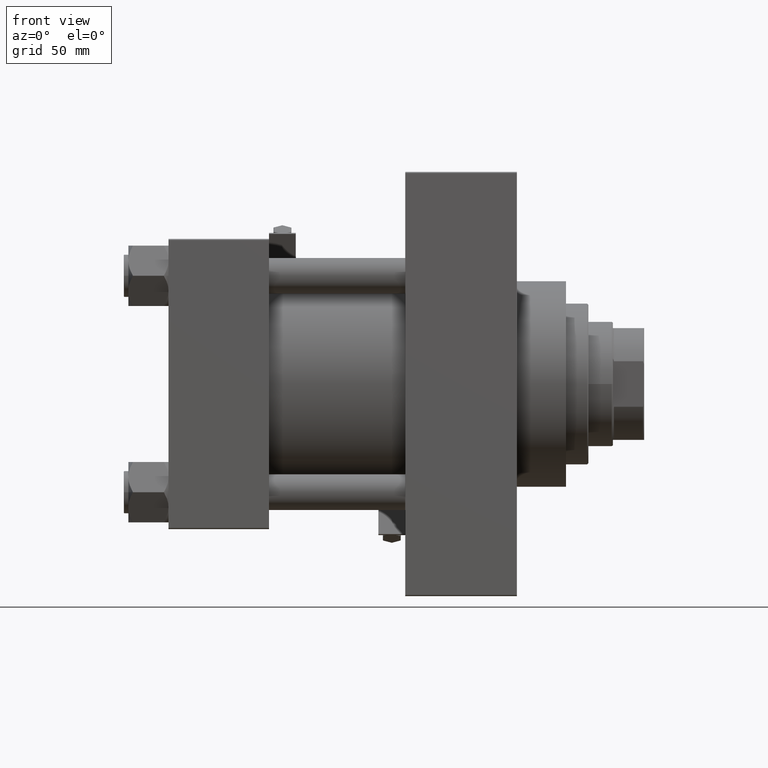
[diagram: clean part render]
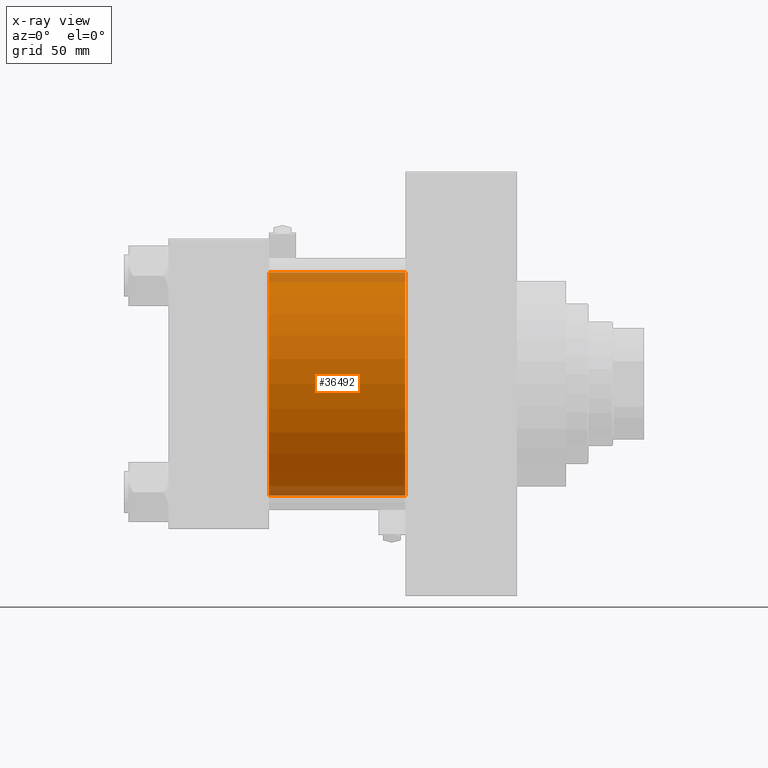
[diagram: x-ray — body ghosted, one internal face saturated and labeled with its STEP entity id]
A machine part, front view, then the same camera in x-ray: the body is ghosted and one INTERNAL B-rep face — a face not visible from any outside direction — is saturated and labeled: STEP entity #36492.
In plain terms, the highlighted cylindrical surface (partial cylindrical patch) has radius 50 mm, axis along (-1, -0, -0).
Its self-contained STEP definition (entity closure, byte-faithful):
#204 = CIRCLE ( 'NONE', #48252, 50.00000000000000000 ) ;
#4008 = CIRCLE ( 'NONE', #46539, 50.00000000000000000 ) ;
#7290 = ORIENTED_EDGE ( 'NONE', *, *, #30000, .F. ) ;
#7811 = EDGE_CURVE ( 'NONE', #43104, #18399, #4008, .T. ) ;
#8656 = FACE_OUTER_BOUND ( 'NONE', #10808, .T. ) ;
#10808 = EDGE_LOOP ( 'NONE', ( #45325, #27795, #28502, #7290 ) ) ;
#12110 = EDGE_CURVE ( 'NONE', #36868, #16210, #204, .T. ) ;
#15314 = DIRECTION ( 'NONE',  ( -1.000000000000000000, -0.000000000000000000, -0.000000000000000000 ) ) ;
#16210 = VERTEX_POINT ( 'NONE', #22746 ) ;
#18087 = LINE ( 'NONE', #33124, #24646 ) ;
#18399 = VERTEX_POINT ( 'NONE', #33377 ) ;
#19837 = AXIS2_PLACEMENT_3D ( 'NONE', #39501, #34812, #24188 ) ;
#22746 = CARTESIAN_POINT ( 'NONE',  ( 45.00000000000000000, 3.521148781771554260E-15, -50.00000000000000000 ) ) ;
#24188 = DIRECTION ( 'NONE',  ( 0.000000000000000000, 0.000000000000000000, 1.000000000000000000 ) ) ;
#24646 = VECTOR ( 'NONE', #29432, 1000.000000000000000 ) ;
#27510 = CARTESIAN_POINT ( 'NONE',  ( 45.00000000000000000, -2.602085213965210642E-15, 0.000000000000000000 ) ) ;
#27795 = ORIENTED_EDGE ( 'NONE', *, *, #37895, .T. ) ;
#28502 = ORIENTED_EDGE ( 'NONE', *, *, #12110, .F. ) ;
#29432 = DIRECTION ( 'NONE',  ( -1.000000000000000000, -0.000000000000000000, -0.000000000000000000 ) ) ;
#30000 = EDGE_CURVE ( 'NONE', #43104, #36868, #48643, .T. ) ;
#30334 = DIRECTION ( 'NONE',  ( 0.000000000000000000, 0.000000000000000000, -1.000000000000000000 ) ) ;
#31295 = CARTESIAN_POINT ( 'NONE',  ( 106.0000000000000000, -2.602085213965210642E-15, 0.000000000000000000 ) ) ;
#33124 = CARTESIAN_POINT ( 'NONE',  ( 106.0000000000000000, 3.521148781771554260E-15, -50.00000000000000000 ) ) ;
#33377 = CARTESIAN_POINT ( 'NONE',  ( 106.0000000000000000, 3.521148781771554260E-15, -50.00000000000000000 ) ) ;
#33570 = CARTESIAN_POINT ( 'NONE',  ( 106.0000000000000000, -2.602085213965210642E-15, 50.00000000000000000 ) ) ;
#34812 = DIRECTION ( 'NONE',  ( -1.000000000000000000, -0.000000000000000000, -0.000000000000000000 ) ) ;
#34916 = CARTESIAN_POINT ( 'NONE',  ( 106.0000000000000000, -2.602085213965210642E-15, 50.00000000000000000 ) ) ;
#35623 = DIRECTION ( 'NONE',  ( 0.000000000000000000, 0.000000000000000000, -1.000000000000000000 ) ) ;
#36492 = ADVANCED_FACE ( 'NONE', ( #8656 ), #42727, .F. ) ;
#36868 = VERTEX_POINT ( 'NONE', #40603 ) ;
#37895 = EDGE_CURVE ( 'NONE', #18399, #16210, #18087, .T. ) ;
#39501 = CARTESIAN_POINT ( 'NONE',  ( 106.0000000000000000, -2.602085213965210642E-15, 0.000000000000000000 ) ) ;
#40603 = CARTESIAN_POINT ( 'NONE',  ( 45.00000000000000000, -2.602085213965210642E-15, 50.00000000000000000 ) ) ;
#42425 = DIRECTION ( 'NONE',  ( 1.000000000000000000, 0.000000000000000000, 0.000000000000000000 ) ) ;
#42727 = CYLINDRICAL_SURFACE ( 'NONE', #19837, 50.00000000000000000 ) ;
#42808 = DIRECTION ( 'NONE',  ( 1.000000000000000000, 0.000000000000000000, 0.000000000000000000 ) ) ;
#43104 = VERTEX_POINT ( 'NONE', #34916 ) ;
#45325 = ORIENTED_EDGE ( 'NONE', *, *, #7811, .T. ) ;
#46539 = AXIS2_PLACEMENT_3D ( 'NONE', #31295, #42425, #30334 ) ;
#47034 = VECTOR ( 'NONE', #15314, 1000.000000000000000 ) ;
#48252 = AXIS2_PLACEMENT_3D ( 'NONE', #27510, #42808, #35623 ) ;
#48643 = LINE ( 'NONE', #33570, #47034 ) ;